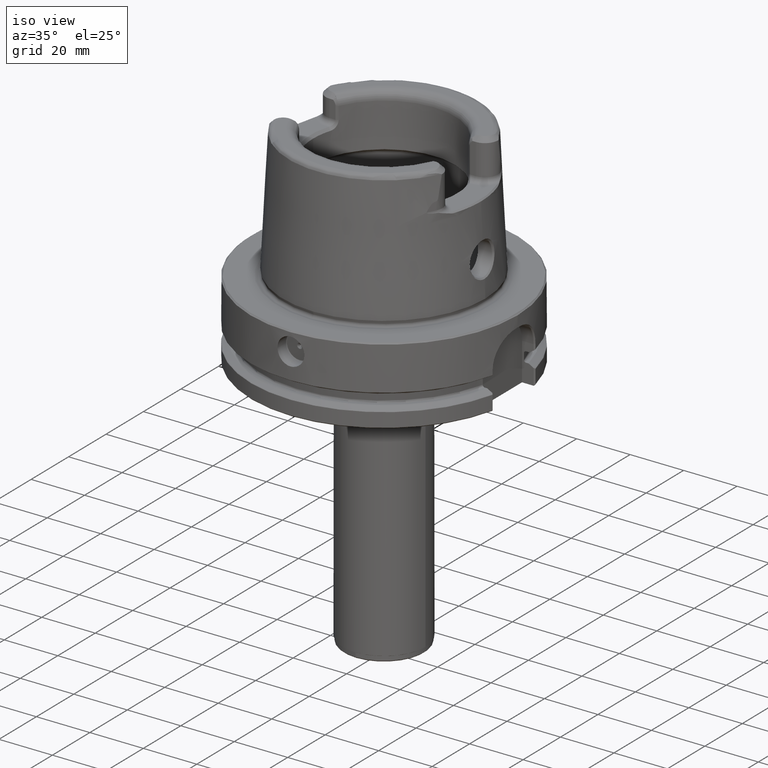
[diagram: clean part render]
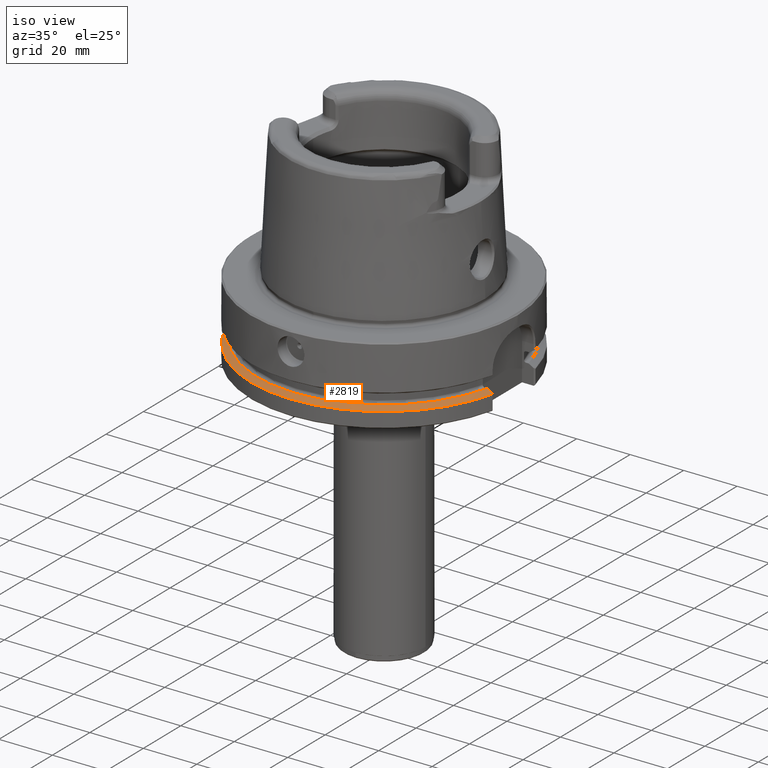
[diagram: same view with one face highlighted and labeled with its STEP entity id]
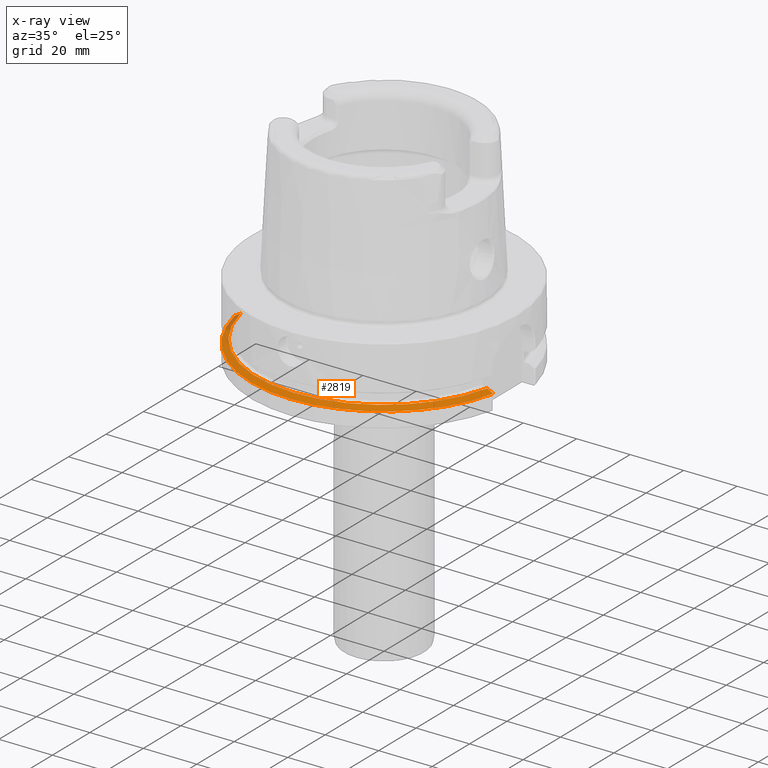
[diagram: x-ray of the same camera — body ghosted, the highlighted face saturated]
A machine part, iso view. The second image highlights one B-rep face of the part: STEP entity #2819.
The next image is the same camera in x-ray: the body ghosted, the highlighted face saturated — about 3% of this face is hidden behind the body in this view.
In plain terms, the highlighted conical surface has half-angle 60 deg.
Its self-contained STEP definition (entity closure, byte-faithful):
#1543=EDGE_CURVE('NONE',#4085,#3159,#4410,.F.);
#1579=EDGE_CURVE('NONE',#2319,#3159,#4448,.F.);
#1593=EDGE_CURVE('NONE',#2055,#2119,#4463,.F.);
#1845=EDGE_CURVE('NONE',#2119,#2261,#4737,.F.);
#2055=VERTEX_POINT('NONE',#4973);
#2119=VERTEX_POINT('NONE',#5041);
#2261=VERTEX_POINT('NONE',#5198);
#2319=VERTEX_POINT('NONE',#5263);
#2669=EDGE_CURVE('NONE',#3347,#2319,#5650,.T.);
#2819=ADVANCED_FACE('NONE',(#5814),#5815,.T.);
#3129=EDGE_CURVE('NONE',#4085,#2261,#6154,.F.);
#3159=VERTEX_POINT('NONE',#6184);
#3347=VERTEX_POINT('NONE',#6395);
#4071=EDGE_CURVE('NONE',#3347,#2055,#7190,.F.);
#4085=VERTEX_POINT('NONE',#7205);
#4410=(B_SPLINE_CURVE(2,(#7700,#7701,#7702),.UNSPECIFIED.,.F.,.F.)B_SPLINE_CURVE_WITH_KNOTS((3,3),(2.77265211443351,3.23216686295199),.UNSPECIFIED.)RATIONAL_B_SPLINE_CURVE((1.00078189244069,1.00079441547358,1.00078961333178))BOUNDED_CURVE()REPRESENTATION_ITEM('')GEOMETRIC_REPRESENTATION_ITEM()CURVE());
#4448=CIRCLE('',#7791,49.814999999998);
#4463=(B_SPLINE_CURVE(2,(#7847,#7848,#7849),.UNSPECIFIED.,.F.,.F.)B_SPLINE_CURVE_WITH_KNOTS((3,3),(2.68553907180486,5.02251507710292),.UNSPECIFIED.)RATIONAL_B_SPLINE_CURVE((1.00103347791358,1.00123112535962,1.00099014889456))BOUNDED_CURVE()REPRESENTATION_ITEM('')GEOMETRIC_REPRESENTATION_ITEM()CURVE());
#4737=CIRCLE('',#8524,47.6625471694755);
#4973=CARTESIAN_POINT('',(-48.6339939634747,-10.021,-23.0632314368753));
#5041=CARTESIAN_POINT('',(-46.5971883452475,-10.021,-21.9125));
#5198=CARTESIAN_POINT('',(46.3708525011399,-11.021,-21.9125));
#5263=CARTESIAN_POINT('',(0.0,-49.8149999999982,-23.1552192211203));
#5650=CIRCLE('',#10523,49.814999999998);
#5814=FACE_OUTER_BOUND('',#10938,.T.);
#5815=CONICAL_SURFACE('',#10939,47.175,1.04719755119659);
#6154=(B_SPLINE_CURVE(2,(#11971,#11972,#11973),.UNSPECIFIED.,.F.,.F.)B_SPLINE_CURVE_WITH_KNOTS((3,3),(2.69115172990753,4.81192448785862),.UNSPECIFIED.)RATIONAL_B_SPLINE_CURVE((1.00099772443468,1.00116027222173,1.00095939702078))BOUNDED_CURVE()REPRESENTATION_ITEM('')GEOMETRIC_REPRESENTATION_ITEM()CURVE());
#6184=CARTESIAN_POINT('',(48.5133827459428,-11.3130862078149,-23.1552192211201));
#6395=CARTESIAN_POINT('',(-48.7578170430509,-10.2083055497067,-23.1552192211202));
#7190=(B_SPLINE_CURVE(2,(#14669,#14670,#14671),.UNSPECIFIED.,.F.,.F.)B_SPLINE_CURVE_WITH_KNOTS((3,3),(3.49638324260023,3.73871380382831),.UNSPECIFIED.)RATIONAL_B_SPLINE_CURVE((1.0010399491372,1.00103919158166,1.00103333338367))BOUNDED_CURVE()REPRESENTATION_ITEM('')GEOMETRIC_REPRESENTATION_ITEM()CURVE());
#7205=CARTESIAN_POINT('',(48.2212965381279,-11.021,-22.9529695393084));
#7700=CARTESIAN_POINT('',(48.5133827459428,-11.3130862078149,-23.1552192211201));
#7701=CARTESIAN_POINT('',(48.3668243314043,-11.1665277932764,-23.0535982438653));
#7702=CARTESIAN_POINT('',(48.2212965381279,-11.021,-22.9529695393084));
#7791=AXIS2_PLACEMENT_3D('',#15533,#15534,#15535);
#7847=CARTESIAN_POINT('',(-46.5971883452475,-10.021,-21.9125));
#7848=CARTESIAN_POINT('',(-47.5947337606822,-10.021,-22.4755597898589));
#7849=CARTESIAN_POINT('',(-48.6339939634747,-10.021,-23.0632314368753));
#8524=AXIS2_PLACEMENT_3D('',#15831,#15832,#15833);
#10523=AXIS2_PLACEMENT_3D('',#16900,#16901,#16902);
#10938=EDGE_LOOP('',(#17077,#17078,#17079,#17080,#17081,#17082,#17083));
#10939=AXIS2_PLACEMENT_3D('',#17084,#17085,#17086);
#11971=CARTESIAN_POINT('',(46.3708525011399,-11.021,-21.9125));
#11972=CARTESIAN_POINT('',(47.2789074998567,-11.021,-22.4225577588018));
#11973=CARTESIAN_POINT('',(48.2212965381279,-11.021,-22.9529695393084));
#14669=CARTESIAN_POINT('',(-48.6339939634747,-10.021,-23.0632314368753));
#14670=CARTESIAN_POINT('',(-48.6958063362259,-10.1145027661763,-23.1090790174487));
#14671=CARTESIAN_POINT('',(-48.7578170430509,-10.2083055497067,-23.1552192211202));
#15533=CARTESIAN_POINT('',(0.0,-8.86840818117211E-019,-23.1552192211202));
#15534=DIRECTION('',(0.0,0.0,-1.0));
#15535=DIRECTION('',(0.0,-1.0,0.0));
#15831=CARTESIAN_POINT('',(0.0,0.0,-21.9125));
#15832=DIRECTION('',(0.0,0.0,-1.0));
#15833=DIRECTION('',(1.0,0.0,0.0));
#16900=CARTESIAN_POINT('',(0.0,-8.86840818117211E-019,-23.1552192211202));
#16901=DIRECTION('',(0.0,0.0,1.0));
#16902=DIRECTION('',(0.0,-1.0,0.0));
#17077=ORIENTED_EDGE('',*,*,#4071,.F.);
#17078=ORIENTED_EDGE('',*,*,#2669,.T.);
#17079=ORIENTED_EDGE('',*,*,#1579,.T.);
#17080=ORIENTED_EDGE('',*,*,#1543,.F.);
#17081=ORIENTED_EDGE('',*,*,#3129,.T.);
#17082=ORIENTED_EDGE('',*,*,#1845,.F.);
#17083=ORIENTED_EDGE('',*,*,#1593,.F.);
#17084=CARTESIAN_POINT('',(0.0,0.0,-21.6310145104607));
#17085=DIRECTION('',(-0.0,-0.0,-1.0));
#17086=DIRECTION('',(1.0,0.0,0.0));